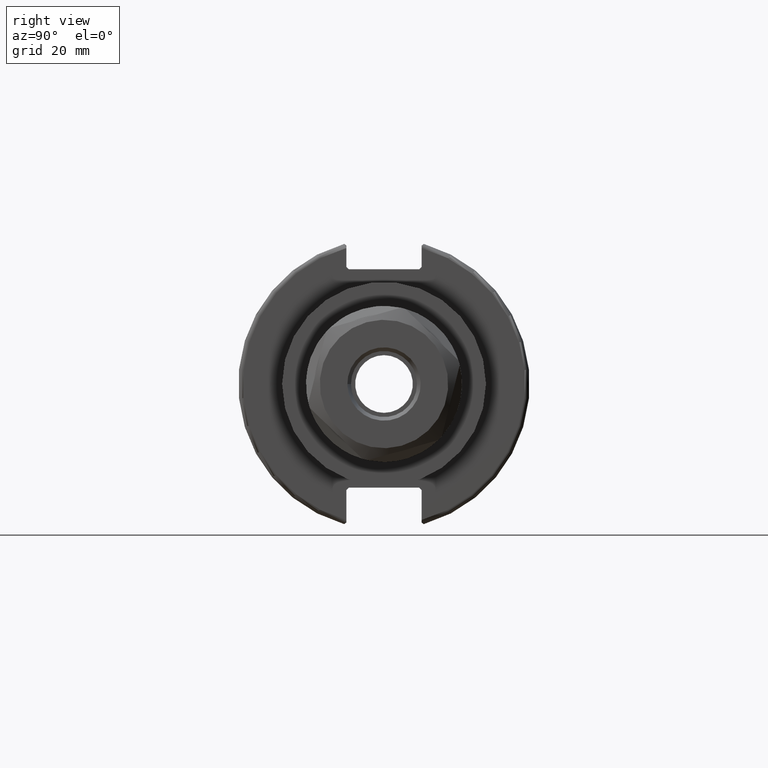
[diagram: clean part render]
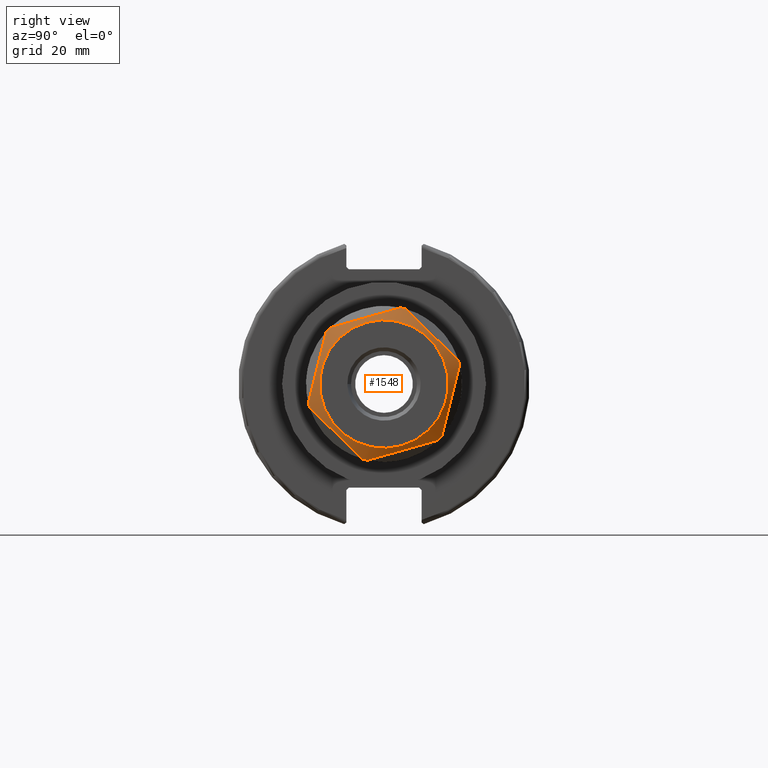
[diagram: same view with one face highlighted and labeled with its STEP entity id]
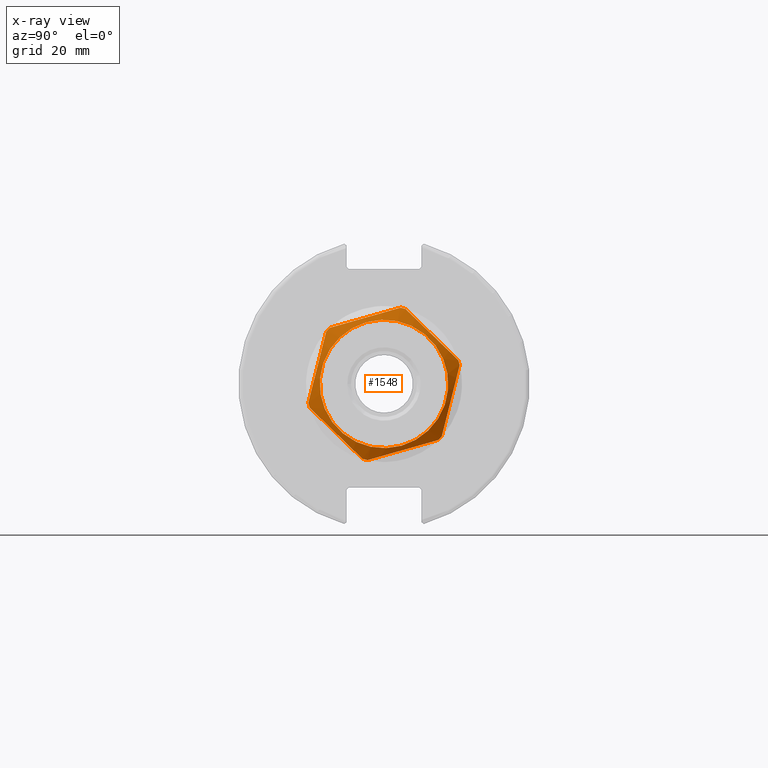
[diagram: x-ray of the same camera — body ghosted, the highlighted face saturated]
A machine part, right view. The second image highlights one B-rep face of the part: STEP entity #1548.
The next image is the same camera in x-ray: the body ghosted, the highlighted face saturated — about 0% of this face is hidden behind the body in this view.
In plain terms, the highlighted conical surface has half-angle 60 deg.
Its self-contained STEP definition (entity closure, byte-faithful):
#84=(
BOUNDED_CURVE()
B_SPLINE_CURVE(2,(#2782,#2783,#2784),.UNSPECIFIED.,.F.,.F.)
B_SPLINE_CURVE_WITH_KNOTS((3,3),(-4.47851568551576,-3.1891473668745),
 .UNSPECIFIED.)
CURVE()
GEOMETRIC_REPRESENTATION_ITEM()
RATIONAL_B_SPLINE_CURVE((1.51788044142269,1.61907247085087,1.61907247085087))
REPRESENTATION_ITEM('')
);
#85=(
BOUNDED_CURVE()
B_SPLINE_CURVE(2,(#2785,#2786,#2787),.UNSPECIFIED.,.F.,.F.)
B_SPLINE_CURVE_WITH_KNOTS((3,3),(-3.1891473668745,-1.89977904823324),
 .UNSPECIFIED.)
CURVE()
GEOMETRIC_REPRESENTATION_ITEM()
RATIONAL_B_SPLINE_CURVE((1.61907247085087,1.61907247085087,1.51788044142269))
REPRESENTATION_ITEM('')
);
#86=(
BOUNDED_CURVE()
B_SPLINE_CURVE(2,(#2789,#2790,#2791),.UNSPECIFIED.,.F.,.F.)
B_SPLINE_CURVE_WITH_KNOTS((3,3),(1.89977904823324,4.47851568551576),
 .UNSPECIFIED.)
CURVE()
GEOMETRIC_REPRESENTATION_ITEM()
RATIONAL_B_SPLINE_CURVE((1.51788044142269,1.72026450027904,1.51788044142269))
REPRESENTATION_ITEM('')
);
#87=(
BOUNDED_CURVE()
B_SPLINE_CURVE(2,(#2792,#2793,#2794),.UNSPECIFIED.,.F.,.F.)
B_SPLINE_CURVE_WITH_KNOTS((3,3),(1.89977904823299,4.47851568551581),
 .UNSPECIFIED.)
CURVE()
GEOMETRIC_REPRESENTATION_ITEM()
RATIONAL_B_SPLINE_CURVE((1.51788044142248,1.72026450027882,1.51788044142245))
REPRESENTATION_ITEM('')
);
#88=(
BOUNDED_CURVE()
B_SPLINE_CURVE(2,(#2795,#2796,#2797),.UNSPECIFIED.,.F.,.F.)
B_SPLINE_CURVE_WITH_KNOTS((3,3),(1.89977904823277,4.47851568551626),
 .UNSPECIFIED.)
CURVE()
GEOMETRIC_REPRESENTATION_ITEM()
RATIONAL_B_SPLINE_CURVE((1.51788044142271,1.72026450027926,1.51788044142274))
REPRESENTATION_ITEM('')
);
#89=(
BOUNDED_CURVE()
B_SPLINE_CURVE(2,(#2801,#2802,#2803),.UNSPECIFIED.,.F.,.F.)
B_SPLINE_CURVE_WITH_KNOTS((3,3),(1.89977904823299,4.47851568551581),
 .UNSPECIFIED.)
CURVE()
GEOMETRIC_REPRESENTATION_ITEM()
RATIONAL_B_SPLINE_CURVE((1.51788044142248,1.72026450027882,1.51788044142245))
REPRESENTATION_ITEM('')
);
#90=(
BOUNDED_CURVE()
B_SPLINE_CURVE(2,(#2804,#2805,#2806),.UNSPECIFIED.,.F.,.F.)
B_SPLINE_CURVE_WITH_KNOTS((3,3),(1.89977904823277,4.47851568551626),
 .UNSPECIFIED.)
CURVE()
GEOMETRIC_REPRESENTATION_ITEM()
RATIONAL_B_SPLINE_CURVE((1.51788044142271,1.72026450027926,1.51788044142274))
REPRESENTATION_ITEM('')
);
#189=CONICAL_SURFACE('',#1778,15.49999999999,1.0471975511966);
#256=FACE_OUTER_BOUND('',#355,.T.);
#355=EDGE_LOOP('',(#1368,#1369,#1370,#1371,#1372,#1373,#1374,#1375,#1376,
#1377,#1378,#1379,#1380,#1381,#1382,#1383));
#472=LINE('',#2799,#571);
#571=VECTOR('',#2175,15.49999999999);
#635=CIRCLE('',#1764,17.);
#636=CIRCLE('',#1766,17.);
#637=CIRCLE('',#1768,17.);
#638=CIRCLE('',#1771,17.);
#639=CIRCLE('',#1773,17.);
#640=CIRCLE('',#1775,17.);
#641=CIRCLE('',#1779,14.);
#763=VERTEX_POINT('',#2730);
#764=VERTEX_POINT('',#2732);
#767=VERTEX_POINT('',#2738);
#768=VERTEX_POINT('',#2740);
#771=VERTEX_POINT('',#2746);
#772=VERTEX_POINT('',#2748);
#776=VERTEX_POINT('',#2757);
#777=VERTEX_POINT('',#2759);
#780=VERTEX_POINT('',#2765);
#781=VERTEX_POINT('',#2767);
#784=VERTEX_POINT('',#2773);
#785=VERTEX_POINT('',#2775);
#786=VERTEX_POINT('',#2781);
#787=VERTEX_POINT('',#2798);
#961=EDGE_CURVE('',#764,#763,#635,.T.);
#965=EDGE_CURVE('',#768,#767,#636,.T.);
#969=EDGE_CURVE('',#772,#771,#637,.T.);
#975=EDGE_CURVE('',#777,#776,#638,.T.);
#979=EDGE_CURVE('',#781,#780,#639,.T.);
#983=EDGE_CURVE('',#785,#784,#640,.T.);
#986=EDGE_CURVE('',#772,#786,#84,.T.);
#987=EDGE_CURVE('',#786,#776,#85,.T.);
#988=EDGE_CURVE('',#785,#763,#86,.T.);
#989=EDGE_CURVE('',#781,#784,#87,.T.);
#990=EDGE_CURVE('',#777,#780,#88,.T.);
#991=EDGE_CURVE('',#786,#787,#472,.T.);
#992=EDGE_CURVE('',#787,#787,#641,.T.);
#993=EDGE_CURVE('',#768,#771,#89,.T.);
#994=EDGE_CURVE('',#764,#767,#90,.T.);
#1368=ORIENTED_EDGE('',*,*,#988,.F.);
#1369=ORIENTED_EDGE('',*,*,#983,.T.);
#1370=ORIENTED_EDGE('',*,*,#989,.F.);
#1371=ORIENTED_EDGE('',*,*,#979,.T.);
#1372=ORIENTED_EDGE('',*,*,#990,.F.);
#1373=ORIENTED_EDGE('',*,*,#975,.T.);
#1374=ORIENTED_EDGE('',*,*,#987,.F.);
#1375=ORIENTED_EDGE('',*,*,#991,.T.);
#1376=ORIENTED_EDGE('',*,*,#992,.F.);
#1377=ORIENTED_EDGE('',*,*,#991,.F.);
#1378=ORIENTED_EDGE('',*,*,#986,.F.);
#1379=ORIENTED_EDGE('',*,*,#969,.T.);
#1380=ORIENTED_EDGE('',*,*,#993,.F.);
#1381=ORIENTED_EDGE('',*,*,#965,.T.);
#1382=ORIENTED_EDGE('',*,*,#994,.F.);
#1383=ORIENTED_EDGE('',*,*,#961,.T.);
#1548=ADVANCED_FACE('',(#256),#189,.T.);
#1764=AXIS2_PLACEMENT_3D('',#2733,#2132,#2133);
#1766=AXIS2_PLACEMENT_3D('',#2741,#2138,#2139);
#1768=AXIS2_PLACEMENT_3D('',#2749,#2144,#2145);
#1771=AXIS2_PLACEMENT_3D('',#2760,#2153,#2154);
#1773=AXIS2_PLACEMENT_3D('',#2768,#2159,#2160);
#1775=AXIS2_PLACEMENT_3D('',#2776,#2165,#2166);
#1778=AXIS2_PLACEMENT_3D('',#2788,#2173,#2174);
#1779=AXIS2_PLACEMENT_3D('',#2800,#2176,#2177);
#2132=DIRECTION('center_axis',(1.,0.,0.));
#2133=DIRECTION('ref_axis',(0.,-0.528845944515708,-0.848717837075013));
#2138=DIRECTION('center_axis',(1.,0.,0.));
#2139=DIRECTION('ref_axis',(0.,-0.999434179809799,0.03363510410144));
#2144=DIRECTION('center_axis',(1.,0.,0.));
#2145=DIRECTION('ref_axis',(0.,-0.470588235294092,0.882352941176485));
#2153=DIRECTION('center_axis',(1.,0.,0.));
#2154=DIRECTION('ref_axis',(0.,0.528845944515708,0.848717837075013));
#2159=DIRECTION('center_axis',(1.,0.,0.));
#2160=DIRECTION('ref_axis',(0.,0.999434179809799,-0.03363510410144));
#2165=DIRECTION('center_axis',(1.,0.,0.));
#2166=DIRECTION('ref_axis',(0.,0.470588235294092,-0.882352941176485));
#2173=DIRECTION('center_axis',(-1.,0.,0.));
#2174=DIRECTION('ref_axis',(0.,0.,-1.));
#2175=DIRECTION('',(0.5,-1.06057523872491E-16,-0.866025403784438));
#2176=DIRECTION('center_axis',(1.,0.,0.));
#2177=DIRECTION('ref_axis',(0.,0.,-1.));
#2730=CARTESIAN_POINT('',(7.767949192431,-8.,-15.));
#2732=CARTESIAN_POINT('',(7.767949192431,-8.990381056767,-14.42820323028));
#2733=CARTESIAN_POINT('Origin',(7.767949192431,0.,0.));
#2738=CARTESIAN_POINT('',(7.767949192431,-16.99038105677,-0.5717967697245));
#2740=CARTESIAN_POINT('',(7.767949192431,-16.99038105677,0.5717967697245));
#2741=CARTESIAN_POINT('Origin',(7.767949192431,0.,0.));
#2746=CARTESIAN_POINT('',(7.767949192431,-8.990381056767,14.42820323028));
#2748=CARTESIAN_POINT('',(7.767949192431,-8.,15.));
#2749=CARTESIAN_POINT('Origin',(7.767949192431,0.,0.));
#2757=CARTESIAN_POINT('',(7.767949192431,8.,15.));
#2759=CARTESIAN_POINT('',(7.767949192431,8.990381056767,14.42820323028));
#2760=CARTESIAN_POINT('Origin',(7.767949192431,0.,0.));
#2765=CARTESIAN_POINT('',(7.767949192431,16.99038105677,0.5717967697245));
#2767=CARTESIAN_POINT('',(7.767949192431,16.99038105677,-0.5717967697245));
#2768=CARTESIAN_POINT('Origin',(7.767949192431,0.,0.));
#2773=CARTESIAN_POINT('',(7.767949192431,8.990381056767,-14.42820323028));
#2775=CARTESIAN_POINT('',(7.767949192431,8.,-15.));
#2776=CARTESIAN_POINT('Origin',(7.767949192431,0.,0.));
#2781=CARTESIAN_POINT('',(8.92264973080904,1.60420055967077E-15,15.));
#2782=CARTESIAN_POINT('Ctrl Pts',(7.76794919242979,-7.99999999999997,15.));
#2783=CARTESIAN_POINT('Ctrl Pts',(8.92264973080904,-3.74999999999999,15.));
#2784=CARTESIAN_POINT('Ctrl Pts',(8.92264973080904,1.3714309206205E-15,
15.));
#2785=CARTESIAN_POINT('Ctrl Pts',(8.92264973080904,1.3714309206205E-15,
15.));
#2786=CARTESIAN_POINT('Ctrl Pts',(8.92264973080904,3.75,15.));
#2787=CARTESIAN_POINT('Ctrl Pts',(7.76794919242979,7.99999999999999,15.));
#2788=CARTESIAN_POINT('Origin',(8.63397459622,0.,0.));
#2789=CARTESIAN_POINT('Ctrl Pts',(7.76794919242979,7.99999999999999,-15.));
#2790=CARTESIAN_POINT('Ctrl Pts',(9.94150314702602,8.88178419700125E-15,
-15.));
#2791=CARTESIAN_POINT('Ctrl Pts',(7.7679491924298,-7.99999999999997,-15.));
#2792=CARTESIAN_POINT('Ctrl Pts',(7.76794919242789,16.9903810567699,-0.571796769725043));
#2793=CARTESIAN_POINT('Ctrl Pts',(9.94150314702463,12.9903810567687,-7.50000000000218));
#2794=CARTESIAN_POINT('Ctrl Pts',(7.76794919242752,8.99038105676748,-14.4282032302796));
#2795=CARTESIAN_POINT('Ctrl Pts',(7.76794919242971,8.99038105676321,14.4282032302778));
#2796=CARTESIAN_POINT('Ctrl Pts',(9.94150314702762,12.9903810567648,7.49999999999987));
#2797=CARTESIAN_POINT('Ctrl Pts',(7.76794919243006,16.9903810567662,0.571796769722221));
#2798=CARTESIAN_POINT('',(9.499999999999,1.71450551880622E-15,13.9999999999994));
#2799=CARTESIAN_POINT('',(8.63397459622,1.89820253867717E-15,15.49999999999));
#2800=CARTESIAN_POINT('Origin',(9.5,0.,0.));
#2801=CARTESIAN_POINT('Ctrl Pts',(7.76794919242789,-16.9903810567699,0.571796769725043));
#2802=CARTESIAN_POINT('Ctrl Pts',(9.94150314702463,-12.9903810567687,7.50000000000218));
#2803=CARTESIAN_POINT('Ctrl Pts',(7.76794919242752,-8.99038105676748,14.4282032302796));
#2804=CARTESIAN_POINT('Ctrl Pts',(7.76794919242971,-8.99038105676321,-14.4282032302778));
#2805=CARTESIAN_POINT('Ctrl Pts',(9.94150314702762,-12.9903810567648,-7.49999999999987));
#2806=CARTESIAN_POINT('Ctrl Pts',(7.76794919243006,-16.9903810567662,-0.571796769722221));